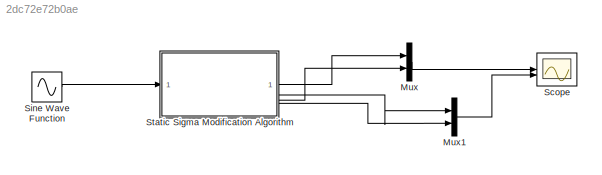
MODEL slx_2dc72e72b0ae
KIND model
CONFIG AbsTol = auto
CONFIG EnableMultiTasking = off
CONFIG FixedStep = auto
CONFIG MaxStep = auto
CONFIG MinStep = auto
CONFIG RelTol = 1e-3
CONFIG SampleTimeConstraint = Unconstrained
CONFIG SolverName = VariableStepAuto
CONFIG StartTime = 0.0
CONFIG StopTime = 30.0
BLOCK [Mux] Mux
  DisplayOption = bar
  Inputs = 2
BLOCK [Mux] Mux1
  DisplayOption = bar
  Inputs = 2
BLOCK [Scope] Scope
  Floating = off
  NumInputPorts = 2
  ScopeSpecificationString = Simulink.scopes.TimeScopeBlockCfg('CurrentConfiguration', extmgr.ConfigurationSet(extmgr.Configuration('Core','General UI',true),extmgr.Configuration('Core','Source UI',true),extmgr.Configuration('Sources','WiredSimulink',true),extmgr.Configuration('Visuals','Time Domain',true,'SerializedDisplays',{struct('MinYLimReal','-6.73312','MaxYLimReal','0.74812','YLabelReal','','MinYLimMag','0.00000','MaxY...<+2167ch>
BLOCK [Sin] Sine Wave Function
  Amplitude = 4
  Frequency = 2
  SampleTime = 0
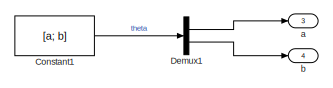
[diagram: Static Sigma Modification Algorithm - part 1/3, top right region]
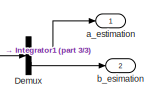
[diagram: Static Sigma Modification Algorithm - part 2/3, middle right region]
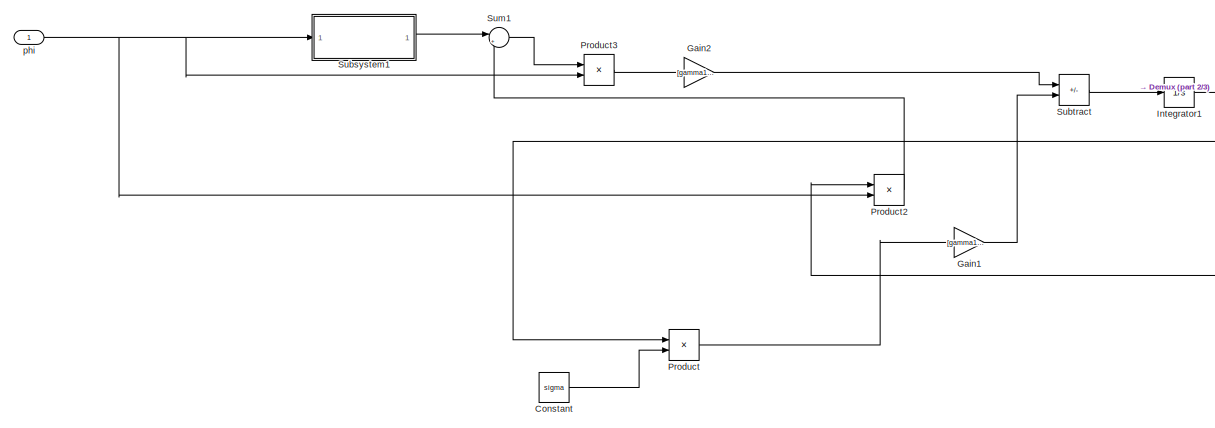
[diagram: Static Sigma Modification Algorithm - part 3/3, full width, middle band]
BLOCK [SubSystem] Static Sigma Modification Algorithm
BLOCK [Constant] Static Sigma Modification Algorithm/Constant
  Value = sigma
BLOCK [Constant] Static Sigma Modification Algorithm/Constant1
  Value = [a; b]
  VectorParams1D = off
BLOCK [Demux] Static Sigma Modification Algorithm/Demux
  Outputs = 2
BLOCK [Demux] Static Sigma Modification Algorithm/Demux1
  Outputs = 2
BLOCK [Gain] Static Sigma Modification Algorithm/Gain1
  Gain = [gamma1 0; 0 gamma2]
  Multiplication = Matrix(K*u)
BLOCK [Gain] Static Sigma Modification Algorithm/Gain2
  Gain = [gamma1 0; 0 gamma2]
  Multiplication = Matrix(K*u)
BLOCK [Integrator] Static Sigma Modification Algorithm/Integrator1
BLOCK [Product] Static Sigma Modification Algorithm/Product
BLOCK [Product] Static Sigma Modification Algorithm/Product2
  Multiplication = Matrix(*)
BLOCK [Product] Static Sigma Modification Algorithm/Product3
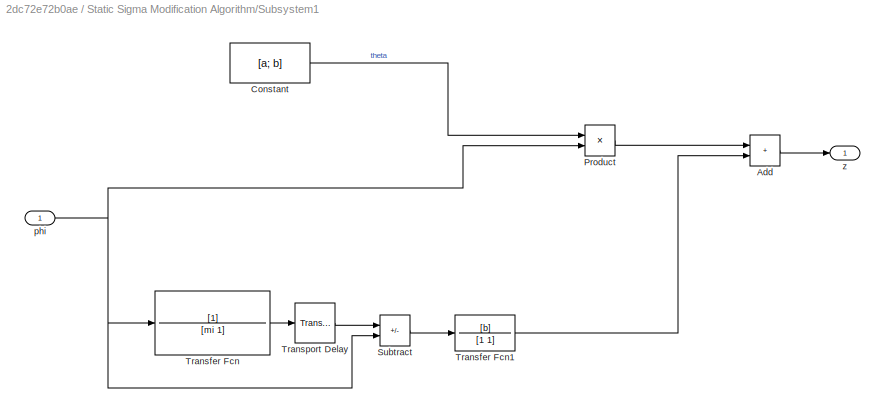
BLOCK [SubSystem] Static Sigma Modification Algorithm/Subsystem1
BLOCK [Sum] Static Sigma Modification Algorithm/Subsystem1/Add
  IconShape = rectangular
BLOCK [Constant] Static Sigma Modification Algorithm/Subsystem1/Constant
  Value = [a; b]
  VectorParams1D = off
BLOCK [Product] Static Sigma Modification Algorithm/Subsystem1/Product
BLOCK [Sum] Static Sigma Modification Algorithm/Subsystem1/Subtract
  IconShape = rectangular
  Inputs = +-
BLOCK [TransferFcn] Static Sigma Modification Algorithm/Subsystem1/Transfer Fcn
  Denominator = [mi 1]
BLOCK [TransferFcn] Static Sigma Modification Algorithm/Subsystem1/Transfer Fcn1
  Denominator = [1 1]
  Numerator = [b]
BLOCK [TransportDelay] Static Sigma Modification Algorithm/Subsystem1/Transport Delay
  DelayTime = ti
BLOCK [Inport] Static Sigma Modification Algorithm/Subsystem1/phi
BLOCK [Outport] Static Sigma Modification Algorithm/Subsystem1/z
BLOCK [Sum] Static Sigma Modification Algorithm/Subtract
  IconShape = rectangular
  Inputs = +-
BLOCK [Sum] Static Sigma Modification Algorithm/Sum1
  Inputs = |+-
BLOCK [Outport] Static Sigma Modification Algorithm/a
  Port = 3
BLOCK [Outport] Static Sigma Modification Algorithm/a_estimation
BLOCK [Outport] Static Sigma Modification Algorithm/b
  Port = 4
BLOCK [Outport] Static Sigma Modification Algorithm/b_esimation
  Port = 2
BLOCK [Inport] Static Sigma Modification Algorithm/phi
LINE Mux1:1 -> Scope:2
LINE Mux:1 -> Scope:1
LINE Sine Wave Function:1 -> Static Sigma Modification Algorithm:1
LINE Static Sigma Modification Algorithm/Constant1:1 -> Static Sigma Modification Algorithm/Demux1:1
LINE Static Sigma Modification Algorithm/Constant:1 -> Static Sigma Modification Algorithm/Product:2
LINE Static Sigma Modification Algorithm/Demux1:1 -> Static Sigma Modification Algorithm/a:1
LINE Static Sigma Modification Algorithm/Demux1:2 -> Static Sigma Modification Algorithm/b:1
LINE Static Sigma Modification Algorithm/Demux:1 -> Static Sigma Modification Algorithm/a_estimation:1
LINE Static Sigma Modification Algorithm/Demux:2 -> Static Sigma Modification Algorithm/b_esimation:1
LINE Static Sigma Modification Algorithm/Gain1:1 -> Static Sigma Modification Algorithm/Subtract:2
LINE Static Sigma Modification Algorithm/Gain2:1 -> Static Sigma Modification Algorithm/Subtract:1
NET Static Sigma Modification Algorithm/Integrator1:1 -> Static Sigma Modification Algorithm/Demux:1, Static Sigma Modification Algorithm/Product2:1, Static Sigma Modification Algorithm/Product:1
LINE Static Sigma Modification Algorithm/Product2:1 -> Static Sigma Modification Algorithm/Sum1:2
LINE Static Sigma Modification Algorithm/Product3:1 -> Static Sigma Modification Algorithm/Gain2:1
LINE Static Sigma Modification Algorithm/Product:1 -> Static Sigma Modification Algorithm/Gain1:1
LINE Static Sigma Modification Algorithm/Subsystem1/Add:1 -> Static Sigma Modification Algorithm/Subsystem1/z:1
LINE Static Sigma Modification Algorithm/Subsystem1/Constant:1 -> Static Sigma Modification Algorithm/Subsystem1/Product:1
LINE Static Sigma Modification Algorithm/Subsystem1/Product:1 -> Static Sigma Modification Algorithm/Subsystem1/Add:1
LINE Static Sigma Modification Algorithm/Subsystem1/Subtract:1 -> Static Sigma Modification Algorithm/Subsystem1/Transfer Fcn1:1
LINE Static Sigma Modification Algorithm/Subsystem1/Transfer Fcn1:1 -> Static Sigma Modification Algorithm/Subsystem1/Add:2
LINE Static Sigma Modification Algorithm/Subsystem1/Transfer Fcn:1 -> Static Sigma Modification Algorithm/Subsystem1/Transport Delay:1
LINE Static Sigma Modification Algorithm/Subsystem1/Transport Delay:1 -> Static Sigma Modification Algorithm/Subsystem1/Subtract:1
NET Static Sigma Modification Algorithm/Subsystem1/phi:1 -> Static Sigma Modification Algorithm/Subsystem1/Product:2, Static Sigma Modification Algorithm/Subsystem1/Subtract:2, Static Sigma Modification Algorithm/Subsystem1/Transfer Fcn:1
LINE Static Sigma Modification Algorithm/Subsystem1:1 -> Static Sigma Modification Algorithm/Sum1:1
LINE Static Sigma Modification Algorithm/Subtract:1 -> Static Sigma Modification Algorithm/Integrator1:1
LINE Static Sigma Modification Algorithm/Sum1:1 -> Static Sigma Modification Algorithm/Product3:1
NET Static Sigma Modification Algorithm/phi:1 -> Static Sigma Modification Algorithm/Product2:2, Static Sigma Modification Algorithm/Product3:2, Static Sigma Modification Algorithm/Subsystem1:1
LINE Static Sigma Modification Algorithm:1 -> Mux:1
LINE Static Sigma Modification Algorithm:2 -> Mux1:1
LINE Static Sigma Modification Algorithm:3 -> Mux:2
LINE Static Sigma Modification Algorithm:4 -> Mux1:2
note: NET lines group one-source signal fan-out (src -> all destinations, sorted); 1:1 wires keep LINE
